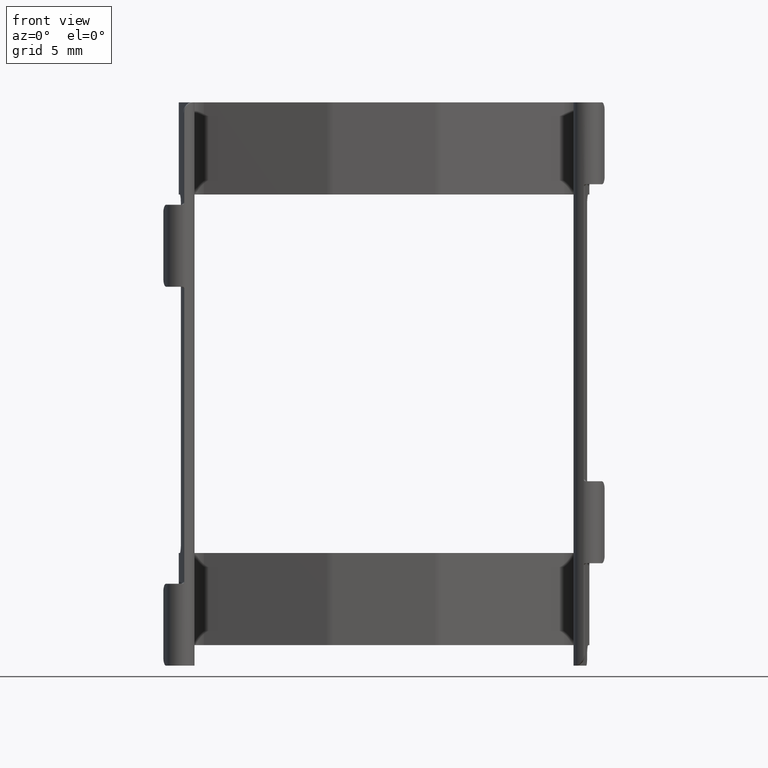
[diagram: clean part render]
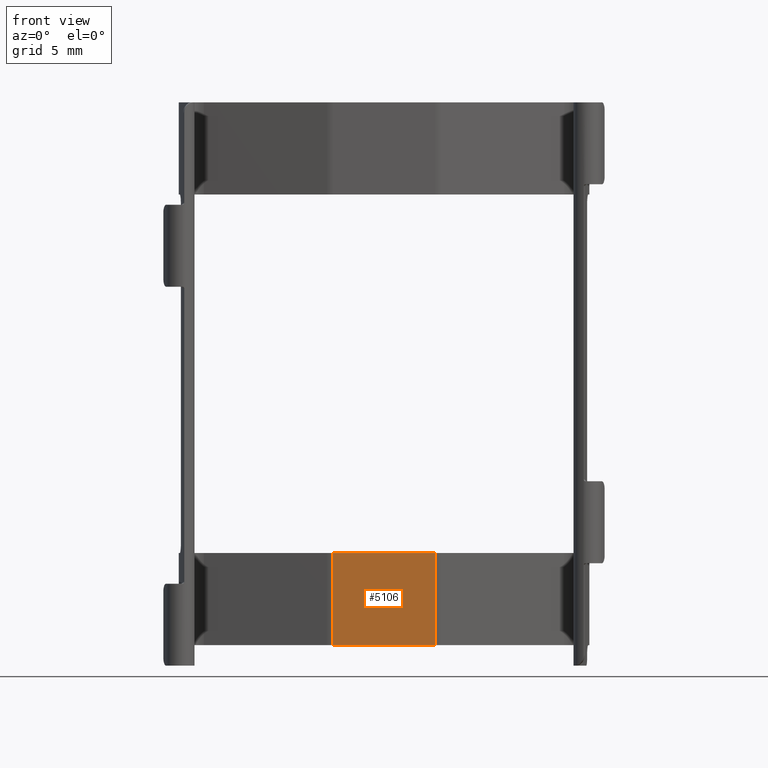
[diagram: same view with one face highlighted and labeled with its STEP entity id]
A machine part, front view. The second image highlights one B-rep face of the part: STEP entity #5106.
In plain terms, the highlighted planar face has unit normal (0, -1, 0).
Its self-contained STEP definition (entity closure, byte-faithful):
#136 = DIRECTION ( 'NONE',  ( 0.0000000000000000000, 0.0000000000000000000, 1.000000000000000000 ) ) ;
#1394 = DIRECTION ( 'NONE',  ( -1.000000000000000000, 0.0000000000000000000, 0.0000000000000000000 ) ) ;
#1519 = AXIS2_PLACEMENT_3D ( 'NONE', #5112, #10236, #10210 ) ;
#1806 = CARTESIAN_POINT ( 'NONE',  ( 2.500000000000000000, -8.673617379884030542E-16, -27.50000000000000000 ) ) ;
#2061 = VERTEX_POINT ( 'NONE', #2305 ) ;
#2118 = CARTESIAN_POINT ( 'NONE',  ( 2.500000000000000000, -8.673617379884030542E-16, -22.00000000000000000 ) ) ;
#2159 = VECTOR ( 'NONE', #3023, 1000.000000000000000 ) ;
#2305 = CARTESIAN_POINT ( 'NONE',  ( 2.500000000000000000, -8.673617379884030542E-16, -22.00000000000000000 ) ) ;
#2323 = LINE ( 'NONE', #1806, #7101 ) ;
#2462 = EDGE_CURVE ( 'NONE', #8832, #3230, #8026, .T. ) ;
#3023 = DIRECTION ( 'NONE',  ( 0.0000000000000000000, 0.0000000000000000000, 1.000000000000000000 ) ) ;
#3230 = VERTEX_POINT ( 'NONE', #5388 ) ;
#3617 = VECTOR ( 'NONE', #1394, 1000.000000000000000 ) ;
#4219 = ORIENTED_EDGE ( 'NONE', *, *, #6026, .T. ) ;
#4237 = DIRECTION ( 'NONE',  ( -1.000000000000000000, 0.0000000000000000000, 0.0000000000000000000 ) ) ;
#4495 = EDGE_LOOP ( 'NONE', ( #7343, #10925, #4219, #8105 ) ) ;
#5106 = ADVANCED_FACE ( 'NONE', ( #5216 ), #6864, .T. ) ;
#5112 = CARTESIAN_POINT ( 'NONE',  ( 2.500000000000000000, -8.673617379884030542E-16, -27.50000000000000000 ) ) ;
#5189 = EDGE_CURVE ( 'NONE', #8979, #8832, #7114, .T. ) ;
#5216 = FACE_OUTER_BOUND ( 'NONE', #4495, .T. ) ;
#5388 = CARTESIAN_POINT ( 'NONE',  ( -2.500000000000000000, -4.336808689942014778E-16, -22.00000000000000000 ) ) ;
#6023 = CARTESIAN_POINT ( 'NONE',  ( 2.500000000000000000, -8.673617379884030542E-16, -26.50000000000000000 ) ) ;
#6026 = EDGE_CURVE ( 'NONE', #2061, #3230, #8307, .T. ) ;
#6581 = VECTOR ( 'NONE', #4237, 1000.000000000000000 ) ;
#6864 = PLANE ( 'NONE',  #1519 ) ;
#7101 = VECTOR ( 'NONE', #136, 1000.000000000000000 ) ;
#7114 = LINE ( 'NONE', #6023, #6581 ) ;
#7343 = ORIENTED_EDGE ( 'NONE', *, *, #5189, .F. ) ;
#8026 = LINE ( 'NONE', #10575, #2159 ) ;
#8105 = ORIENTED_EDGE ( 'NONE', *, *, #2462, .F. ) ;
#8307 = LINE ( 'NONE', #2118, #3617 ) ;
#8832 = VERTEX_POINT ( 'NONE', #10096 ) ;
#8979 = VERTEX_POINT ( 'NONE', #9252 ) ;
#9252 = CARTESIAN_POINT ( 'NONE',  ( 2.500000000000000000, -8.673617379884030542E-16, -26.50000000000000000 ) ) ;
#10096 = CARTESIAN_POINT ( 'NONE',  ( -2.500000000000000000, -4.336808689942014778E-16, -26.50000000000000000 ) ) ;
#10210 = DIRECTION ( 'NONE',  ( 0.0000000000000000000, 0.0000000000000000000, -1.000000000000000000 ) ) ;
#10236 = DIRECTION ( 'NONE',  ( 0.0000000000000000000, -1.000000000000000000, 0.0000000000000000000 ) ) ;
#10575 = CARTESIAN_POINT ( 'NONE',  ( -2.500000000000000000, -4.336808689942014778E-16, -27.50000000000000000 ) ) ;
#10834 = EDGE_CURVE ( 'NONE', #8979, #2061, #2323, .T. ) ;
#10925 = ORIENTED_EDGE ( 'NONE', *, *, #10834, .T. ) ;